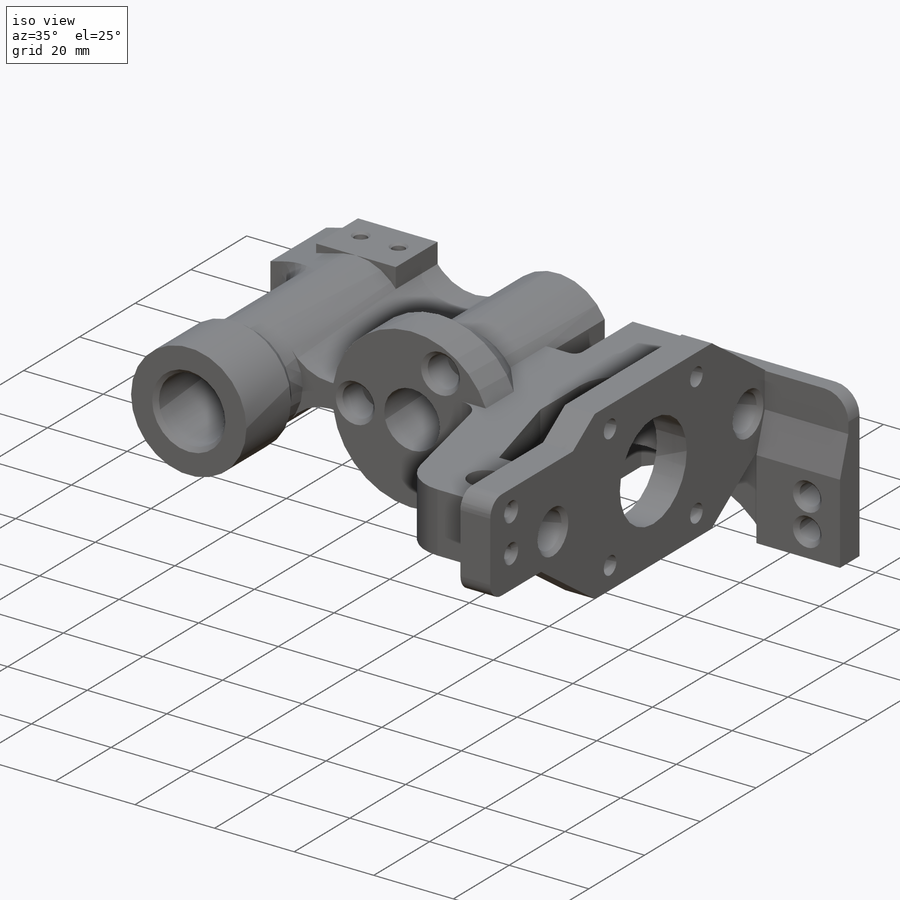
[diagram: iso view]
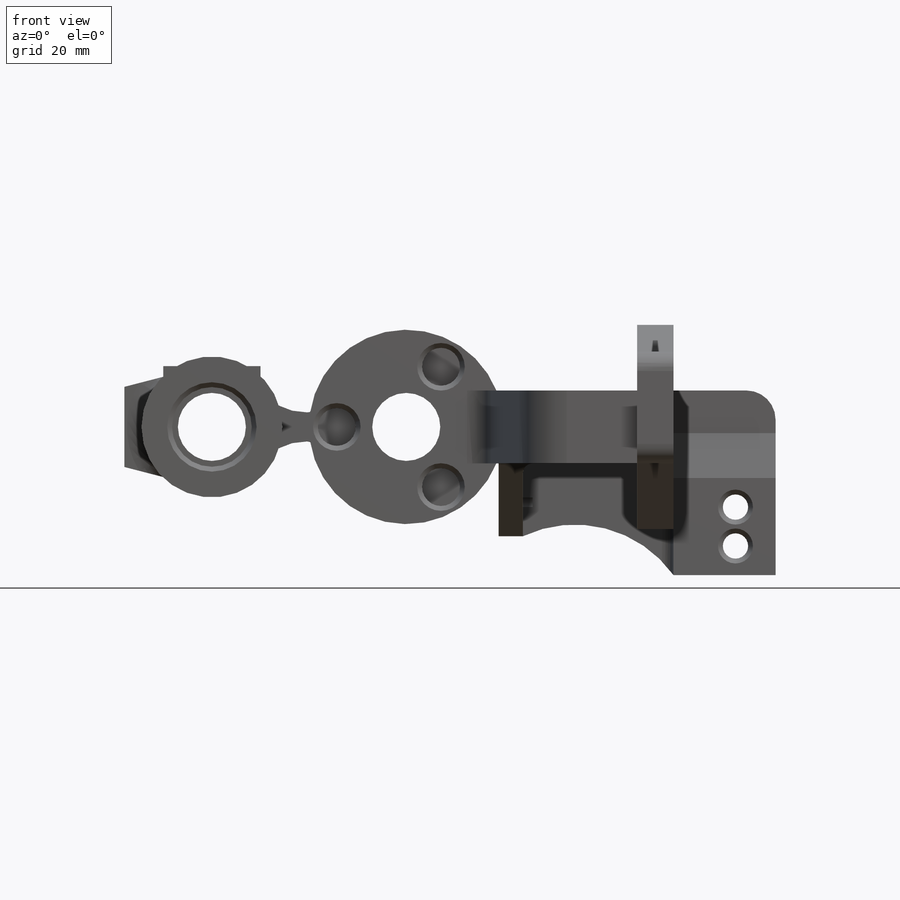
[diagram: front view]
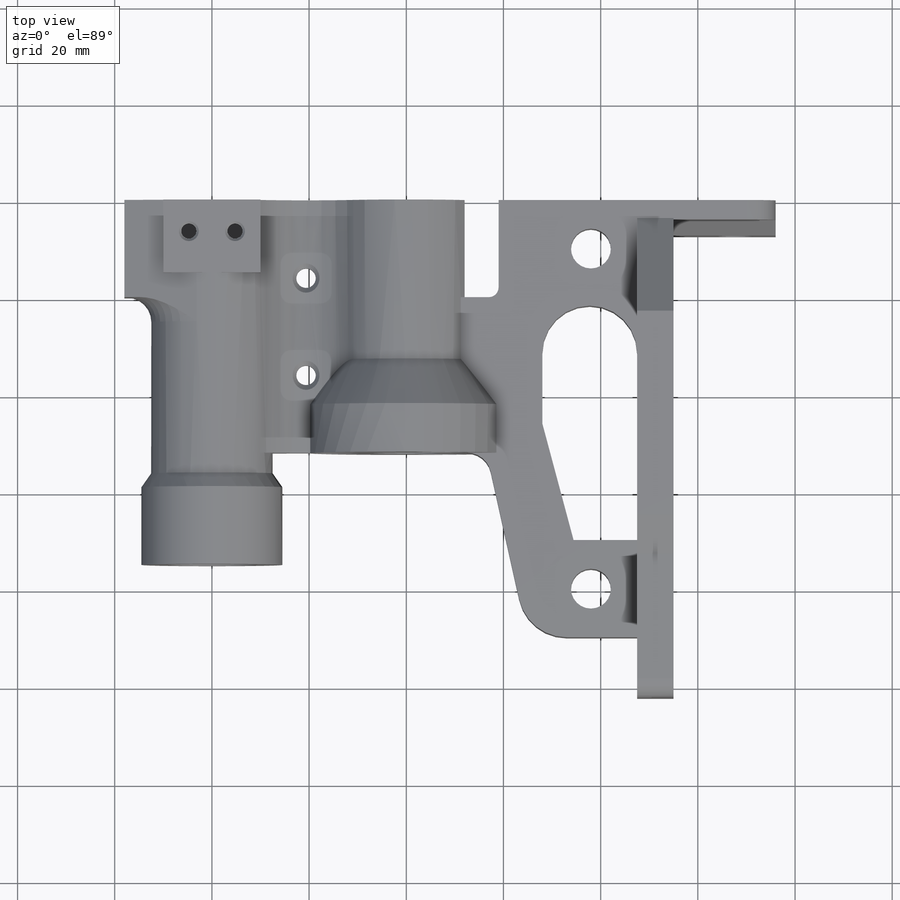
[diagram: top view]
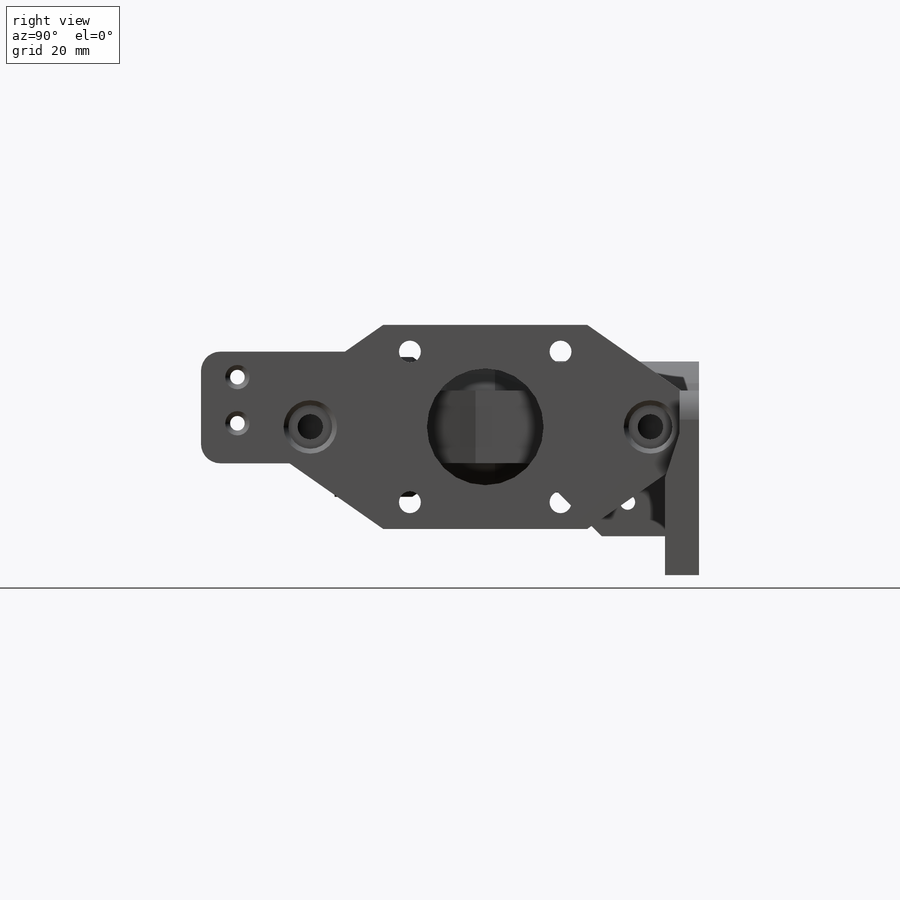
[diagram: right view]
SOLIDWORKS PART (.sldprt)
format: sldprt  version: not decoded by parser v0  size: 894,976 bytes
history: native  units: mm
features: sketch x26, cut_extrude x14, extrude x9, chamfer x9, fillet x5, revolve x3, material x1 (+11 scaffold rows collapsed)
feature tree (78):
  scaffold x11  (default folders/planes/origin — collapsed)
  material  "Material <not specified>"
  sketch  "Sketch1"  dims[D2=16.4mm D3=14.0mm D4=27.0mm D5=25.0mm D10=12.0mm D1=40.0mm D6=55.0mm D7=42.0mm D8=15.0mm D9=7.5mm]
  extrude  "Boss-Extrude1"  Depth=90mm
  sketch  "Sketch2"  dims[c1.D4=8.2mm c1.D1=17.5mm c1.D2=70.0mm c1.D3=10.0mm c2.D1=38.0mm c2.D5=20.0mm c2.D6=20.0mm c2.D7=27.0mm c2.D8=~16.547398mm c3.D8=15.0deg c3.D9=24.0mm]
  cut_extrude  "Cut-Extrude1"  [1 undecoded]
  sketch  "Sketch3"  dims[c1.D1=4.5mm c1.D2=24.0mm c1.D12=5.2mm c1.D3=31.0mm c1.D4=31.0mm c1.D5=44.0mm c1.D6=21.0mm c1.D7=42.0mm c1.D8=20.0mm c2.D8=35.0deg c2.D9=~24.403086mm c3.D9=35.0deg c3.D10=20.0mm c4.D10=35.0deg c4.D11=20.0mm c5.D11=35.0deg c5.D13=10.0mm c5.D14=70.0mm]
  cut_extrude  "Cut-Extrude2"  Depth=17mm
  sketch  "Sketch4"  dims[D1=23.0mm]
  cut_extrude  "Cut-Extrude3"  Depth=38mm
  sketch  "Sketch5"  dims[c1.D1=10.0mm c1.D2=18.0mm c1.D3=40.0mm c1.D4=14.1288mm c2.D4=35.0deg]
  revolve  "Revolve1"  Angle=360deg
  sketch  "Sketch6"  dims[c1.D1=7.8mm c1.D2=15.5mm c1.D3=~10.765809mm c2.D3=120.0deg c2.D4=~13.187257mm c3.D4=120.0deg]
  cut_extrude  "Cut-Extrude4"  Depth=8mm
  sketch  "Sketch9"
  cut_extrude  "Cut-Extrude6"  Depth=15mm
  sketch  "Sketch7"  dims[c1.D1=16.4mm c1.D2=27.0mm c1.D3=27.0mm c1.D4=14.0mm c1.D5=~5.136681mm c2.D5=40.0deg c2.D3=27.0mm]
  revolve  "Revolve2"  Angle=360deg
  chamfer  "Chamfer1"  Distance=1mm Angle=45deg
  fillet  "Fillet1"  Radius=10mm
  sketch  "Sketch8"  dims[D1=23.0mm D2=13.0mm D3=24.0mm D4=45.0mm]
  cut_extrude  "Cut-Extrude5"  Depth=7mm
  sketch  "Sketch10"  dims[D1=9.0mm]
  cut_extrude  "Cut-Extrude7"  Depth=7mm
  chamfer  "Chamfer2"  Distance=1mm Angle=45deg
  sketch  "Sketch11"  dims[c1.D1=2.0mm c1.D2=~7.151206mm c2.D2=35.0deg c2.D3=16.0mm]
  revolve  "Revolve3"  Angle=360deg
  sketch  "Sketch12"  dims[D1=20.0mm D2=7.0mm D3=12.0mm]
  cut_extrude  "Cut-Extrude8"  [1 undecoded]
  sketch  "Sketch13"  dims[c1.D7=3.1mm c1.D1=15.0mm c1.D2=~12.263105mm c2.D2=~37.23569deg c3.D2=20.0mm c3.D3=~21.601606mm c4.D3=~232.76431deg c5.D3=~21.601606mm c6.D3=45.0deg c6.D4=7.5mm c6.D5=5.2mm c6.D6=9.5mm c7.D4=8.0mm]
  extrude  "Boss-Extrude2"  Depth=5mm
  fillet  "Fillet2"  Radius=2mm
  sketch  "Sketch14"
  cut_extrude  "Cut-Extrude9"  [1 undecoded]
  chamfer  "Chamfer3"  Distance=1mm Angle=45deg
  sketch  "Sketch15"  dims[D1=16.5mm D2=18.0mm]
  extrude  "Boss-Extrude3"  Depth=20mm
  sketch  "Sketch16"  dims[D2=5.2mm D1=8.0mm D3=6.0mm]
  cut_extrude  "Cut-Extrude10"  Depth=7mm
  fillet  "Fillet3"  Radius=5mm
  chamfer  "Chamfer4"  Distance=1mm Angle=45deg
  sketch  "Sketch17"  dims[c1.D5=3.0mm c1.D7=4.0mm c1.D1=23.0mm c1.D2=12.5mm c1.D3=9.5mm c1.D4=7.5mm c1.D6=5.25mm c2.D7=11.0mm c2.D8=~29.651402mm]
  extrude  "Boss-Extrude4"  [1 undecoded]
  chamfer  "Chamfer5"  Distance=1mm Angle=45deg
  sketch  "Sketch18"  dims[c1.D1=25.0mm c1.D6=5.2mm c2.D1=~21.537885mm c3.D1=40.0deg c3.D2=21.0mm c3.D3=38.0mm c3.D4=16.5mm c3.D5=8.0mm c3.D7=6.0mm c3.D8=8.25mm]
  extrude  "Boss-Extrude5"  Depth=4mm
  sketch  "Sketch19"  dims[D1=20.0mm D2=~6.706859mm D3=~2.979894mm D4=~1.489947mm]
  extrude  "Boss-Extrude6"  Depth=15mm
  sketch  "Sketch20"  dims[D3=3.1mm D1=9.5mm D2=6.5mm]
  cut_extrude  "Cut-Extrude11"  Depth=4mm
  chamfer  "Chamfer6"  Distance=0.5mm Angle=45deg
  sketch  "Sketch21"  dims[D2=4.0mm D1=20.0mm D3=36.0mm]
  cut_extrude  "Cut-Extrude12"  Depth=5mm
  chamfer  "Chamfer7"  Distance=1mm Angle=45deg
  sketch  "Sketch23"  dims[c1.D1=3.0mm c1.D2=20.0mm c1.D3=3.0mm c2.D3=18.0deg c2.D4=0.0mm]
  extrude  "Boss-Extrude7"  [1 undecoded]
  sketch  "Sketch24"
  cut_extrude  "Cut-Extrude14"  Depth=10mm
  sketch  "Sketch25"  dims[D1=0.0mm]
  cut_extrude  "Cut-Extrude15"  Depth=2mm
  fillet  "Fillet4"  Radius=6mm
  fillet  "Fillet5"  Radius=2.5mm
  sketch  "Sketch26"  dims[D1=11.5mm]
  extrude  "Boss-Extrude8"  [1 undecoded]
  sketch  "Sketch28"  dims[D1=5.0mm D2=10.5mm]
  extrude  "Boss-Extrude9"  [1 undecoded]
  chamfer  "Chamfer8"  Distance=1mm Angle=45deg
  chamfer  "Chamfer9"  Distance=1mm Angle=60deg
decode coverage: 56 of 66 modeling features carry decoded parameters
note: ~ marks probable driven/reference dimensions
note: 7 parameter values undecoded
summary: no parameter record found for 7 features
note: suppression state not decoded; provenance and decode notes live in map.json
